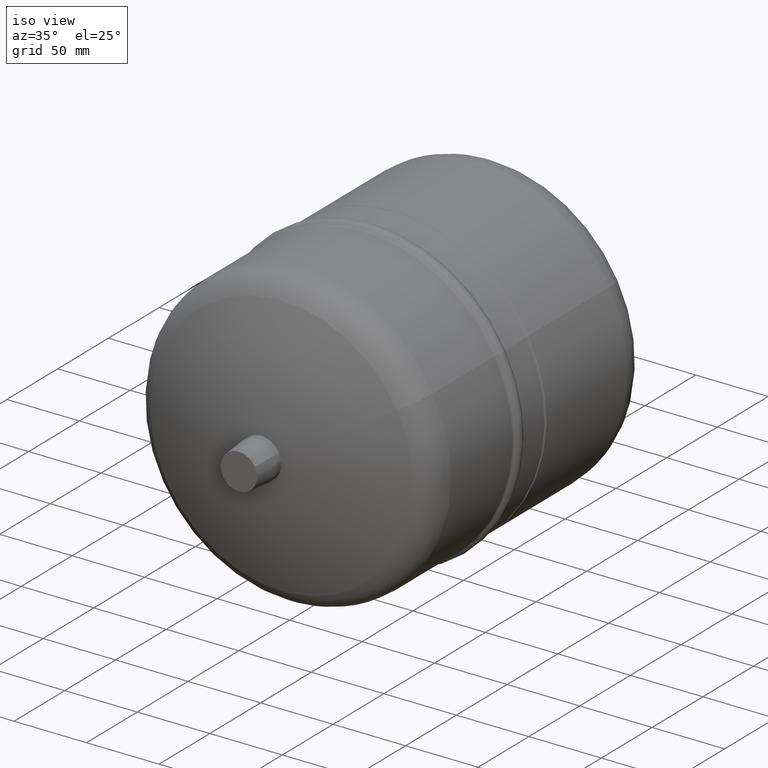
[diagram: clean part render]
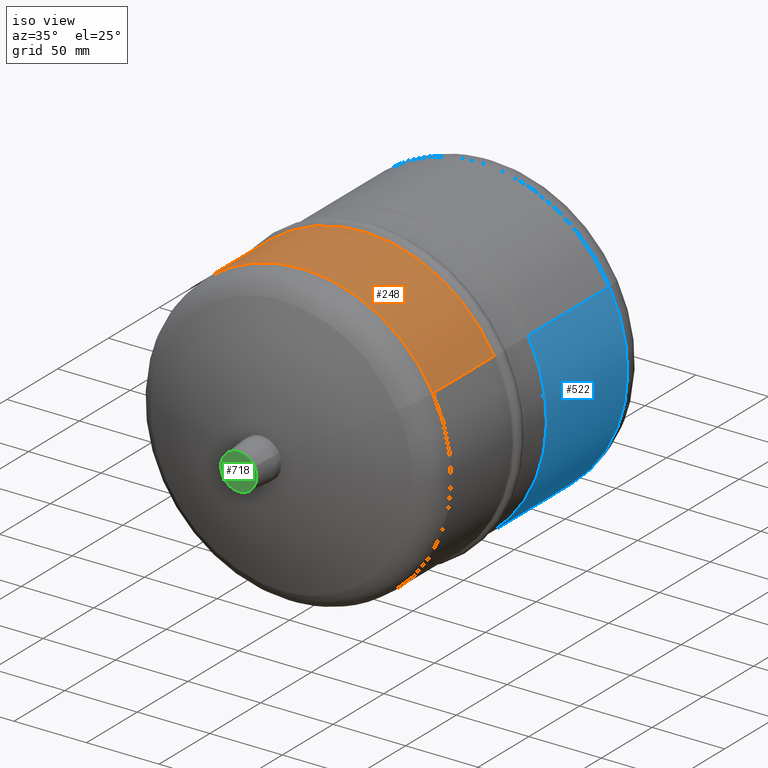
[diagram: same view with three faces highlighted in distinct colors, each labeled with its STEP entity id]
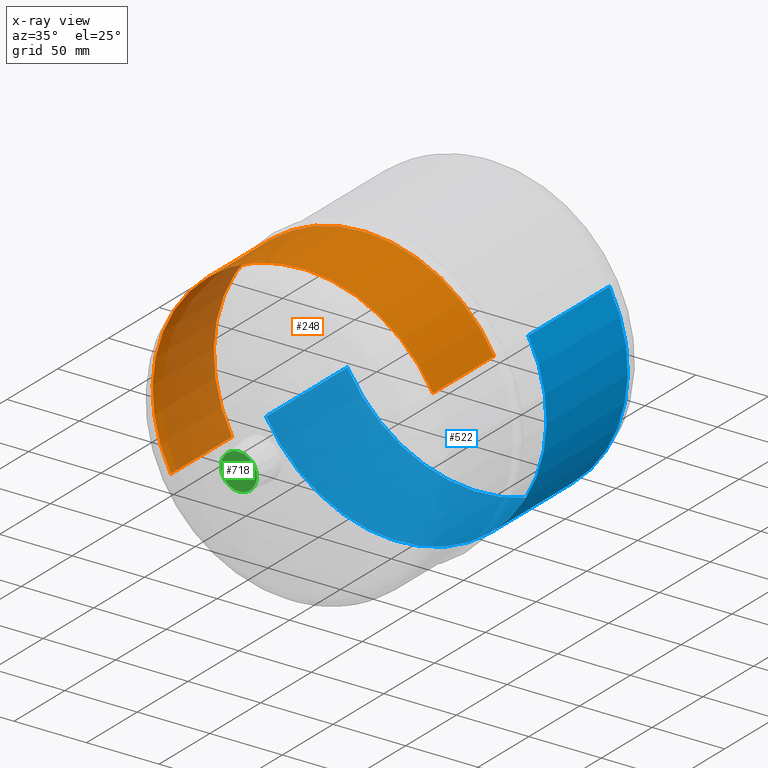
[diagram: x-ray of the same camera — body ghosted, the three highlighted faces saturated]
A machine part, iso view with three faces highlighted in distinct colors.
The next image is the same camera in x-ray (body ghosted, the three faces saturated) — at least one of them is partly hidden behind the body in this view.
Their STEP definitions:

[orange] entity #248 — the highlighted cylindrical surface (partial cylindrical patch) has radius 103 mm, axis along (0, -1, 0).
#189=AXIS2_PLACEMENT_3D('Circle Axis2P3D',#187,#188,$) ;
#221=AXIS2_PLACEMENT_3D('Cylinder Axis2P3D',#218,#219,#220) ;
#232=AXIS2_PLACEMENT_3D('Circle Axis2P3D',#230,#231,$) ;
#184=CARTESIAN_POINT('Vertex',(90.3910038747,62.0917561731,49.3808304762)) ;
#187=CARTESIAN_POINT('Axis2P3D Location',(0.,62.0917561731,0.)) ;
#191=CARTESIAN_POINT('Vertex',(-90.3910038747,62.0917561731,-49.3808304762)) ;
#218=CARTESIAN_POINT('Axis2P3D Location',(0.,143.,0.)) ;
#223=CARTESIAN_POINT('Line Origine',(90.3910038747,149.034940875,49.3808304762)) ;
#227=CARTESIAN_POINT('Vertex',(90.3910038747,122.409830056,49.3808304762)) ;
#230=CARTESIAN_POINT('Axis2P3D Location',(0.,122.409830056,0.)) ;
#234=CARTESIAN_POINT('Vertex',(-90.3910038747,122.409830056,-49.3808304762)) ;
#237=CARTESIAN_POINT('Line Origine',(-90.3910038747,149.034940875,-49.3808304762)) ;
#188=DIRECTION('Axis2P3D Direction',(0.,-1.,0.)) ;
#219=DIRECTION('Axis2P3D Direction',(0.,-1.,0.)) ;
#220=DIRECTION('Axis2P3D XDirection',(0.87758256189,0.,0.479425538604)) ;
#224=DIRECTION('Vector Direction',(0.,-1.,0.)) ;
#231=DIRECTION('Axis2P3D Direction',(0.,-1.,0.)) ;
#238=DIRECTION('Vector Direction',(0.,-1.,0.)) ;
#225=VECTOR('Line Direction',#224,1.) ;
#239=VECTOR('Line Direction',#238,1.) ;
#243=ORIENTED_EDGE('',*,*,#193,.F.) ;
#244=ORIENTED_EDGE('',*,*,#229,.T.) ;
#245=ORIENTED_EDGE('',*,*,#236,.T.) ;
#246=ORIENTED_EDGE('',*,*,#241,.F.) ;
#248=ADVANCED_FACE('Hauptk\X2\00F6\X0\rper',(#247),#222,.T.) ;
#190=CIRCLE('generated circle',#189,103.) ;
#233=CIRCLE('generated circle',#232,103.) ;
#222=CYLINDRICAL_SURFACE('generated cylinder',#221,103.) ;
#193=EDGE_CURVE('',#185,#192,#190,.T.) ;
#229=EDGE_CURVE('',#185,#228,#226,.F.) ;
#236=EDGE_CURVE('',#228,#235,#233,.T.) ;
#241=EDGE_CURVE('',#192,#235,#240,.F.) ;
#242=EDGE_LOOP('',(#243,#244,#245,#246)) ;
#247=FACE_OUTER_BOUND('',#242,.T.) ;
#226=LINE('Line',#223,#225) ;
#240=LINE('Line',#237,#239) ;
#185=VERTEX_POINT('',#184) ;
#192=VERTEX_POINT('',#191) ;
#228=VERTEX_POINT('',#227) ;
#235=VERTEX_POINT('',#234) ;

[blue] entity #522 — the highlighted cylindrical surface (partial cylindrical patch) has radius 103 mm, axis along (0, -1, 0).
#221=AXIS2_PLACEMENT_3D('Cylinder Axis2P3D',#218,#219,#220) ;
#475=AXIS2_PLACEMENT_3D('Circle Axis2P3D',#473,#474,$) ;
#513=AXIS2_PLACEMENT_3D('Circle Axis2P3D',#511,#512,$) ;
#218=CARTESIAN_POINT('Axis2P3D Location',(0.,143.,0.)) ;
#446=CARTESIAN_POINT('Vertex',(90.3910038747,156.,49.3808304762)) ;
#453=CARTESIAN_POINT('Vertex',(-90.3910038747,156.,-49.3808304762)) ;
#473=CARTESIAN_POINT('Axis2P3D Location',(0.,156.,0.)) ;
#485=CARTESIAN_POINT('Line Origine',(90.3910038747,149.034940875,49.3808304762)) ;
#489=CARTESIAN_POINT('Vertex',(90.3910038747,235.978125578,49.3808304762)) ;
#496=CARTESIAN_POINT('Vertex',(-90.3910038747,235.978125578,-49.3808304762)) ;
#499=CARTESIAN_POINT('Line Origine',(-90.3910038747,149.034940875,-49.3808304762)) ;
#511=CARTESIAN_POINT('Axis2P3D Location',(0.,235.978125578,0.)) ;
#219=DIRECTION('Axis2P3D Direction',(0.,-1.,0.)) ;
#220=DIRECTION('Axis2P3D XDirection',(0.87758256189,0.,0.479425538604)) ;
#474=DIRECTION('Axis2P3D Direction',(0.,1.,-0.)) ;
#486=DIRECTION('Vector Direction',(0.,-1.,0.)) ;
#500=DIRECTION('Vector Direction',(0.,-1.,0.)) ;
#512=DIRECTION('Axis2P3D Direction',(0.,-1.,0.)) ;
#487=VECTOR('Line Direction',#486,1.) ;
#501=VECTOR('Line Direction',#500,1.) ;
#517=ORIENTED_EDGE('',*,*,#477,.F.) ;
#518=ORIENTED_EDGE('',*,*,#503,.T.) ;
#519=ORIENTED_EDGE('',*,*,#515,.T.) ;
#520=ORIENTED_EDGE('',*,*,#491,.F.) ;
#522=ADVANCED_FACE('Hauptk\X2\00F6\X0\rper',(#521),#222,.T.) ;
#476=CIRCLE('generated circle',#475,103.) ;
#514=CIRCLE('generated circle',#513,103.) ;
#222=CYLINDRICAL_SURFACE('generated cylinder',#221,103.) ;
#477=EDGE_CURVE('',#454,#447,#476,.F.) ;
#491=EDGE_CURVE('',#447,#490,#488,.F.) ;
#503=EDGE_CURVE('',#454,#497,#502,.F.) ;
#515=EDGE_CURVE('',#497,#490,#514,.T.) ;
#516=EDGE_LOOP('',(#517,#518,#519,#520)) ;
#521=FACE_OUTER_BOUND('',#516,.T.) ;
#488=LINE('Line',#485,#487) ;
#502=LINE('Line',#499,#501) ;
#447=VERTEX_POINT('',#446) ;
#454=VERTEX_POINT('',#453) ;
#490=VERTEX_POINT('',#489) ;
#497=VERTEX_POINT('',#496) ;

[green] entity #718 — the highlighted planar face has unit normal (0, -1, 0).
#39=AXIS2_PLACEMENT_3D('Circle Axis2P3D',#37,#38,$) ;
#74=AXIS2_PLACEMENT_3D('Circle Axis2P3D',#72,#73,$) ;
#712=AXIS2_PLACEMENT_3D('Plane Axis2P3D',#709,#710,#711) ;
#37=CARTESIAN_POINT('Axis2P3D Location',(0.,0.,0.)) ;
#41=CARTESIAN_POINT('Vertex',(10.9697820236,0.,5.99281923255)) ;
#43=CARTESIAN_POINT('Vertex',(-10.9697820236,0.,-5.99281923255)) ;
#72=CARTESIAN_POINT('Axis2P3D Location',(0.,0.,0.)) ;
#709=CARTESIAN_POINT('Axis2P3D Location',(12.5,0.,0.)) ;
#38=DIRECTION('Axis2P3D Direction',(0.,1.,-0.)) ;
#73=DIRECTION('Axis2P3D Direction',(0.,1.,-0.)) ;
#710=DIRECTION('Axis2P3D Direction',(0.,-1.,0.)) ;
#711=DIRECTION('Axis2P3D XDirection',(1.,0.,0.)) ;
#715=ORIENTED_EDGE('',*,*,#45,.T.) ;
#716=ORIENTED_EDGE('',*,*,#76,.T.) ;
#718=ADVANCED_FACE('Hauptk\X2\00F6\X0\rper',(#717),#713,.T.) ;
#40=CIRCLE('generated circle',#39,12.5) ;
#75=CIRCLE('generated circle',#74,12.5) ;
#45=EDGE_CURVE('',#42,#44,#40,.F.) ;
#76=EDGE_CURVE('',#44,#42,#75,.F.) ;
#714=EDGE_LOOP('',(#715,#716)) ;
#717=FACE_OUTER_BOUND('',#714,.T.) ;
#713=PLANE('Plane',#712) ;
#42=VERTEX_POINT('',#41) ;
#44=VERTEX_POINT('',#43) ;